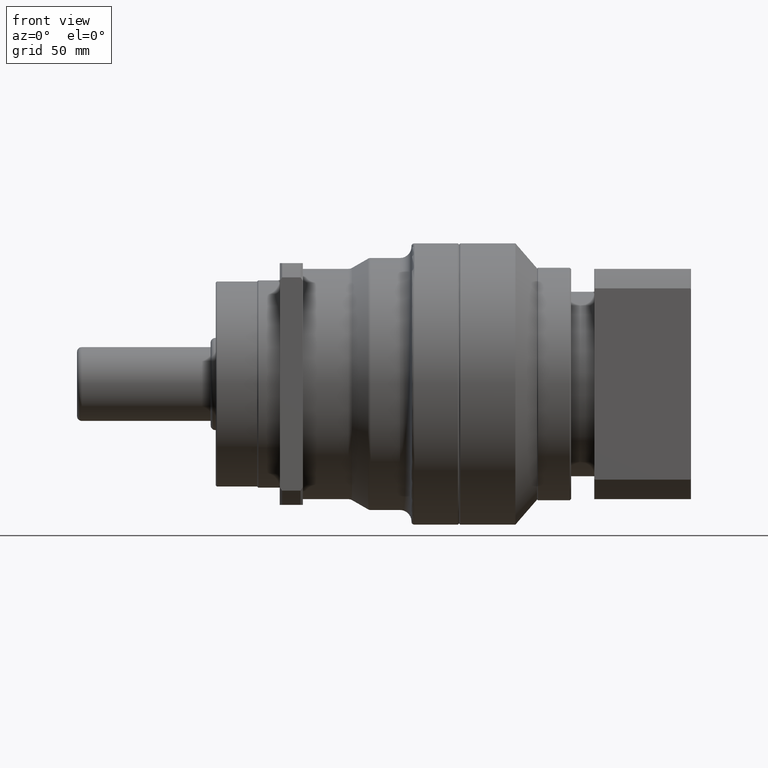
[diagram: clean part render]
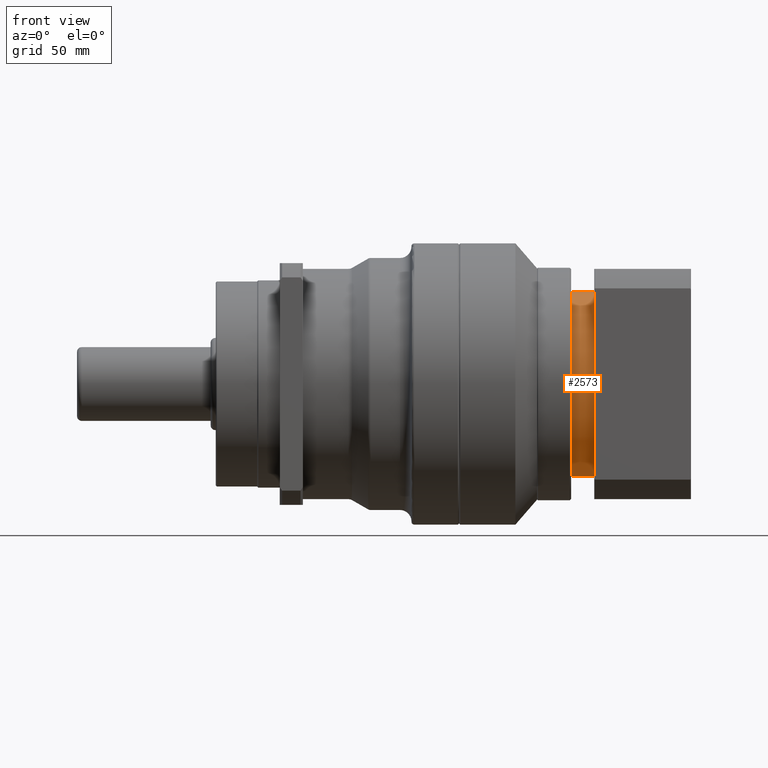
[diagram: same view with one face highlighted and labeled with its STEP entity id]
A machine part, front view. The second image highlights one B-rep face of the part: STEP entity #2573.
In plain terms, the highlighted cylindrical surface (partial cylindrical patch) has radius 40.0358 mm, axis along (-1, -0, -0).
Its self-contained STEP definition (entity closure, byte-faithful):
#120 = DIRECTION ( 'NONE',  ( -1.000000000000000000, -0.0000000000000000000, -0.0000000000000000000 ) ) ;
#370 = CARTESIAN_POINT ( 'NONE',  ( 218.1575204554808600, 4.633161260266394500, 40.03578159635201700 ) ) ;
#389 = DIRECTION ( 'NONE',  ( -1.000000000000000000, -0.0000000000000000000, -0.0000000000000000000 ) ) ;
#497 = CYLINDRICAL_SURFACE ( 'NONE', #2887, 40.03578159635201700 ) ;
#645 = EDGE_CURVE ( 'NONE', #2630, #1024, #3717, .T. ) ;
#682 = VECTOR ( 'NONE', #1970, 1000.000000000000000 ) ;
#707 = AXIS2_PLACEMENT_3D ( 'NONE', #4937, #120, #931 ) ;
#828 = CIRCLE ( 'NONE', #2818, 40.03578159635201700 ) ;
#931 = DIRECTION ( 'NONE',  ( 0.0000000000000000000, 0.0000000000000000000, 1.000000000000000000 ) ) ;
#1024 = VERTEX_POINT ( 'NONE', #4464 ) ;
#1056 = DIRECTION ( 'NONE',  ( -1.000000000000000000, -0.0000000000000000000, -0.0000000000000000000 ) ) ;
#1433 = EDGE_CURVE ( 'NONE', #2630, #4833, #5194, .T. ) ;
#1442 = CARTESIAN_POINT ( 'NONE',  ( 218.1575204554808600, 4.633161260266394500, 0.0000000000000000000 ) ) ;
#1479 = DIRECTION ( 'NONE',  ( 0.0000000000000000000, 0.0000000000000000000, 1.000000000000000000 ) ) ;
#1841 = ORIENTED_EDGE ( 'NONE', *, *, #3915, .F. ) ;
#1969 = ORIENTED_EDGE ( 'NONE', *, *, #1433, .F. ) ;
#1970 = DIRECTION ( 'NONE',  ( -1.000000000000000000, -0.0000000000000000000, -0.0000000000000000000 ) ) ;
#2158 = ORIENTED_EDGE ( 'NONE', *, *, #2776, .T. ) ;
#2547 = CARTESIAN_POINT ( 'NONE',  ( 218.1575204554808600, 4.633161260266399900, -40.03578159635201700 ) ) ;
#2572 = VERTEX_POINT ( 'NONE', #370 ) ;
#2573 = ADVANCED_FACE ( 'NONE', ( #2604 ), #497, .T. ) ;
#2604 = FACE_OUTER_BOUND ( 'NONE', #3611, .T. ) ;
#2630 = VERTEX_POINT ( 'NONE', #4841 ) ;
#2755 = DIRECTION ( 'NONE',  ( 0.0000000000000000000, 0.0000000000000000000, 1.000000000000000000 ) ) ;
#2776 = EDGE_CURVE ( 'NONE', #1024, #2572, #2987, .T. ) ;
#2818 = AXIS2_PLACEMENT_3D ( 'NONE', #1442, #1056, #1479 ) ;
#2887 = AXIS2_PLACEMENT_3D ( 'NONE', #3602, #389, #2755 ) ;
#2987 = LINE ( 'NONE', #3259, #4893 ) ;
#3064 = ORIENTED_EDGE ( 'NONE', *, *, #645, .T. ) ;
#3196 = CARTESIAN_POINT ( 'NONE',  ( 3.651376329708235300, 4.633161260266399900, -40.03578159635201700 ) ) ;
#3259 = CARTESIAN_POINT ( 'NONE',  ( 3.651376329708235300, 4.633161260266394500, 40.03578159635201700 ) ) ;
#3602 = CARTESIAN_POINT ( 'NONE',  ( 3.651376329708235300, 4.633161260266394500, 0.0000000000000000000 ) ) ;
#3611 = EDGE_LOOP ( 'NONE', ( #1969, #3064, #2158, #1841 ) ) ;
#3640 = DIRECTION ( 'NONE',  ( -1.000000000000000000, -0.0000000000000000000, -0.0000000000000000000 ) ) ;
#3717 = CIRCLE ( 'NONE', #707, 40.03578159635201000 ) ;
#3915 = EDGE_CURVE ( 'NONE', #4833, #2572, #828, .T. ) ;
#4464 = CARTESIAN_POINT ( 'NONE',  ( 228.1575204512271300, 4.633161260266394500, 40.03578159635201000 ) ) ;
#4833 = VERTEX_POINT ( 'NONE', #2547 ) ;
#4841 = CARTESIAN_POINT ( 'NONE',  ( 228.1575204512271300, 4.633161260266399900, -40.03578159635201000 ) ) ;
#4893 = VECTOR ( 'NONE', #3640, 1000.000000000000000 ) ;
#4937 = CARTESIAN_POINT ( 'NONE',  ( 228.1575204512271300, 4.633161260266394500, 0.0000000000000000000 ) ) ;
#5194 = LINE ( 'NONE', #3196, #682 ) ;